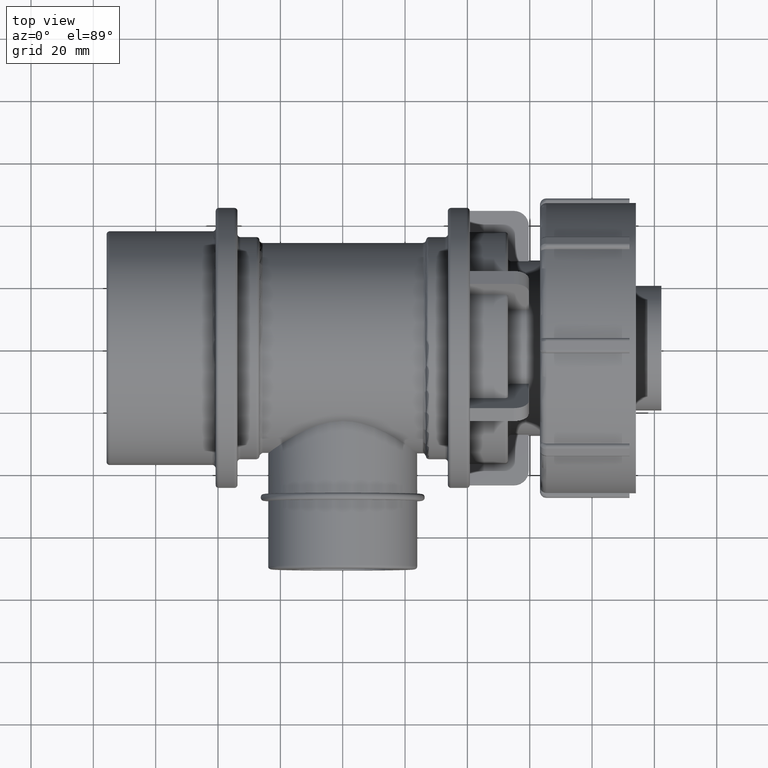
[diagram: clean part render]
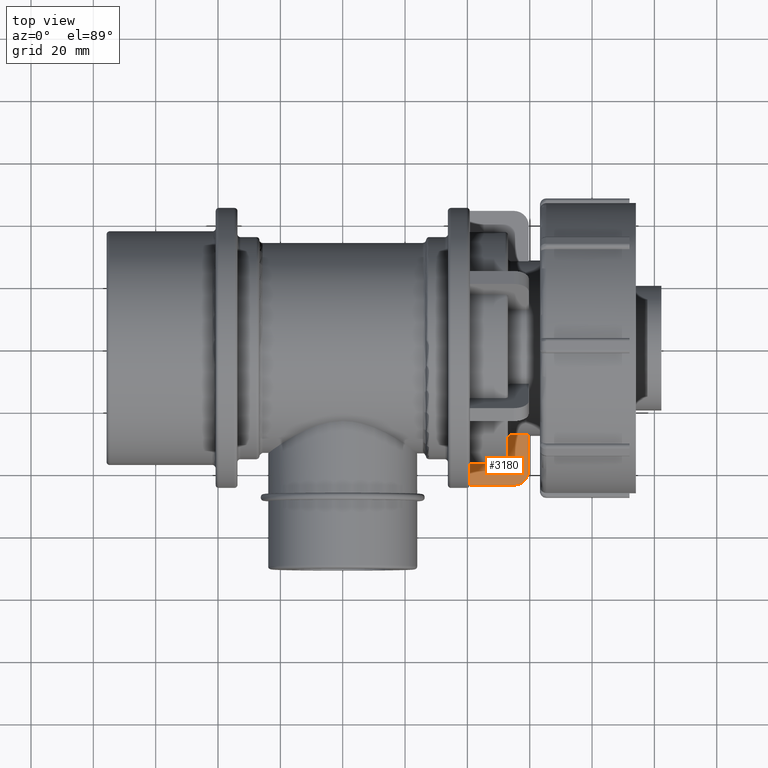
[diagram: same view with one face highlighted and labeled with its STEP entity id]
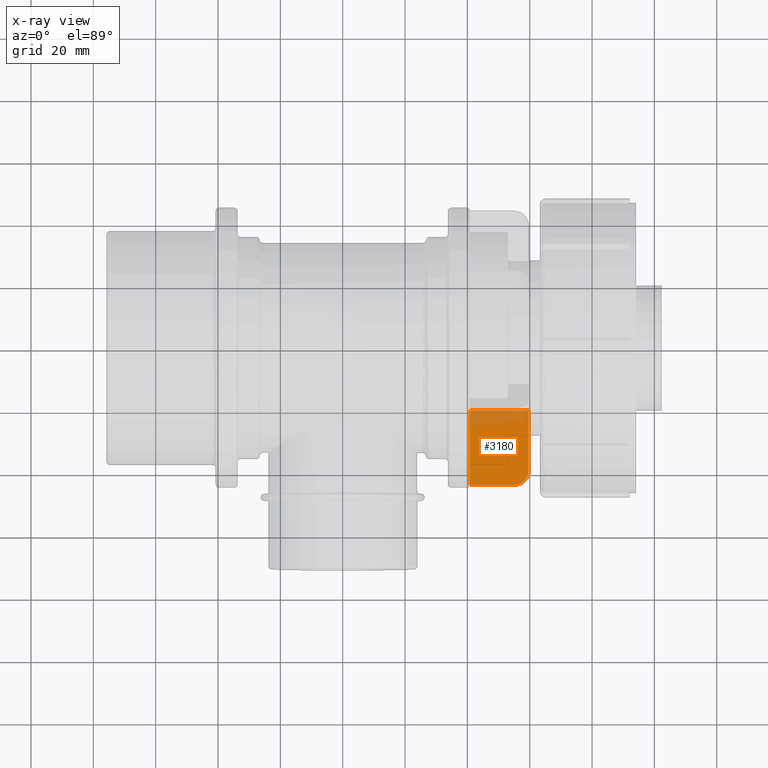
[diagram: x-ray of the same camera — body ghosted, the highlighted face saturated]
A machine part, top view. The second image highlights one B-rep face of the part: STEP entity #3180.
The next image is the same camera in x-ray: the body ghosted, the highlighted face saturated — about 17% of this face is hidden behind the body in this view.
In plain terms, the highlighted planar face has unit normal (0, 0, 1).
Its self-contained STEP definition (entity closure, byte-faithful):
#161=LINE('',#6007,#343);
#164=LINE('',#6013,#346);
#165=LINE('',#6015,#347);
#166=LINE('',#6016,#348);
#343=VECTOR('',#4402,14.15);
#346=VECTOR('',#4407,19.2);
#347=VECTOR('',#4408,18.95);
#348=VECTOR('',#4409,24.);
#485=PLANE('',#3556);
#697=CIRCLE('',#3554,4.8);
#973=FACE_OUTER_BOUND('',#1234,.T.);
#1234=EDGE_LOOP('',(#2802,#2803,#2804,#2805,#2806));
#1579=VERTEX_POINT('',#6000);
#1580=VERTEX_POINT('',#6002);
#1581=VERTEX_POINT('',#6006);
#1583=VERTEX_POINT('',#6012);
#1584=VERTEX_POINT('',#6014);
#1995=EDGE_CURVE('',#1579,#1580,#697,.T.);
#1997=EDGE_CURVE('',#1581,#1580,#161,.T.);
#2000=EDGE_CURVE('',#1579,#1583,#164,.T.);
#2001=EDGE_CURVE('',#1583,#1584,#165,.T.);
#2002=EDGE_CURVE('',#1584,#1581,#166,.T.);
#2802=ORIENTED_EDGE('',*,*,#1995,.F.);
#2803=ORIENTED_EDGE('',*,*,#2000,.T.);
#2804=ORIENTED_EDGE('',*,*,#2001,.T.);
#2805=ORIENTED_EDGE('',*,*,#2002,.T.);
#2806=ORIENTED_EDGE('',*,*,#1997,.T.);
#3180=ADVANCED_FACE('',(#973),#485,.T.);
#3554=AXIS2_PLACEMENT_3D('',#6003,#4397,#4398);
#3556=AXIS2_PLACEMENT_3D('',#6011,#4405,#4406);
#4397=DIRECTION('center_axis',(0.,-1.66533453693773E-16,-1.));
#4398=DIRECTION('ref_axis',(0.707106781186548,-0.707106781186547,5.78241158658936E-17));
#4402=DIRECTION('',(1.,0.,0.));
#4405=DIRECTION('center_axis',(0.,1.66533453693773E-16,1.));
#4406=DIRECTION('ref_axis',(-1.,0.,0.));
#4407=DIRECTION('',(0.,1.,-1.66533453693773E-16));
#4408=DIRECTION('',(-1.,0.,0.));
#4409=DIRECTION('',(0.,-1.,1.66533453693773E-16));
#6000=CARTESIAN_POINT('',(59.7,-39.2,2.40000000000001));
#6002=CARTESIAN_POINT('',(54.9,-44.,2.40000000000001));
#6003=CARTESIAN_POINT('Origin',(54.9,-39.2,2.40000000000001));
#6006=CARTESIAN_POINT('',(40.75,-44.,2.40000000000001));
#6007=CARTESIAN_POINT('',(59.7,-44.,2.40000000000001));
#6011=CARTESIAN_POINT('Origin',(50.225,-32.,2.40000000000001));
#6012=CARTESIAN_POINT('',(59.7,-20.,2.4));
#6013=CARTESIAN_POINT('',(59.7,-28.125,2.4));
#6014=CARTESIAN_POINT('',(40.75,-20.,2.4));
#6015=CARTESIAN_POINT('',(40.75,-20.,2.4));
#6016=CARTESIAN_POINT('',(40.75,-44.,2.40000000000001));